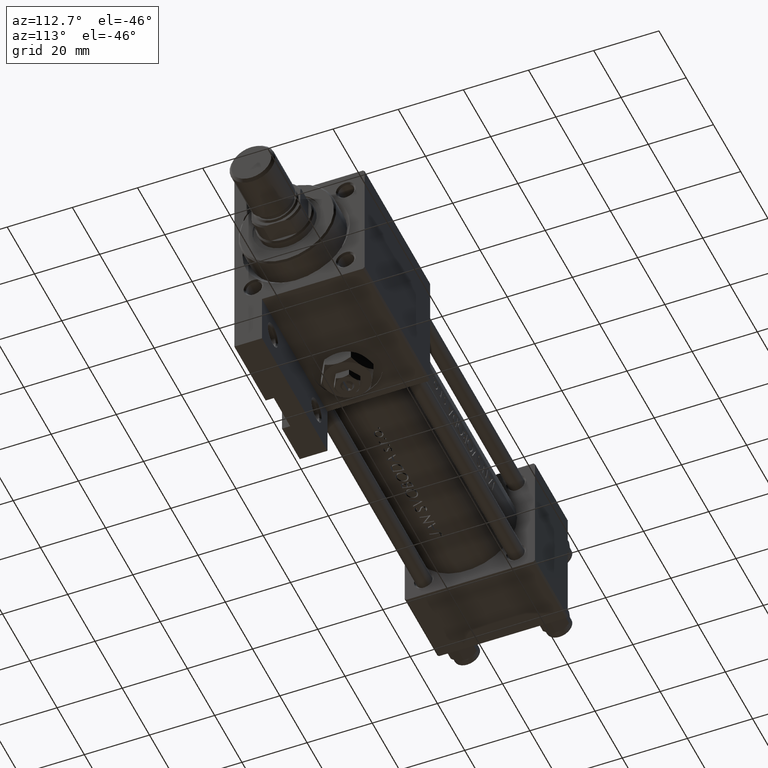
[diagram: clean part render]
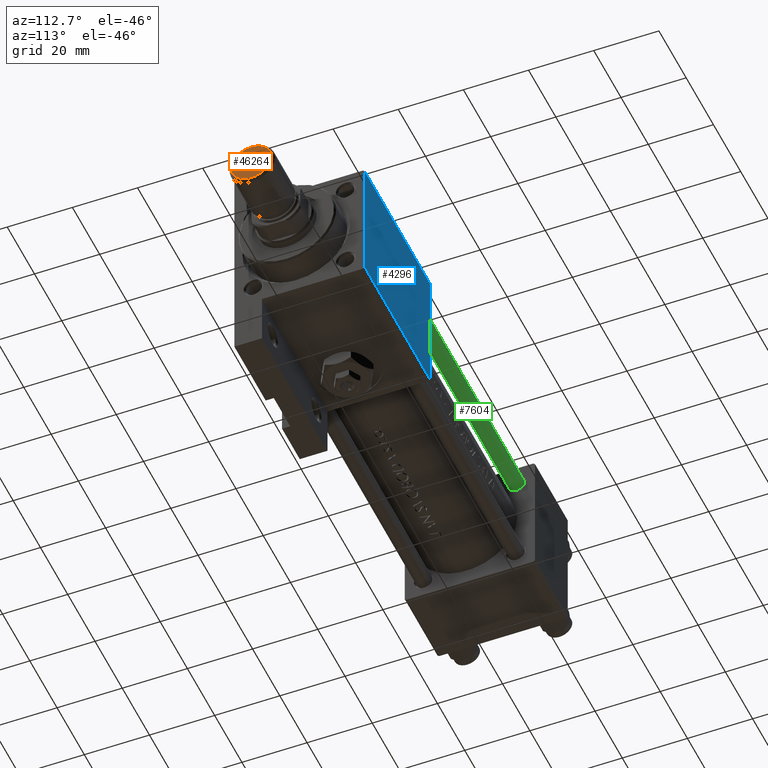
[diagram: same view with three faces highlighted in distinct colors, each labeled with its STEP entity id]
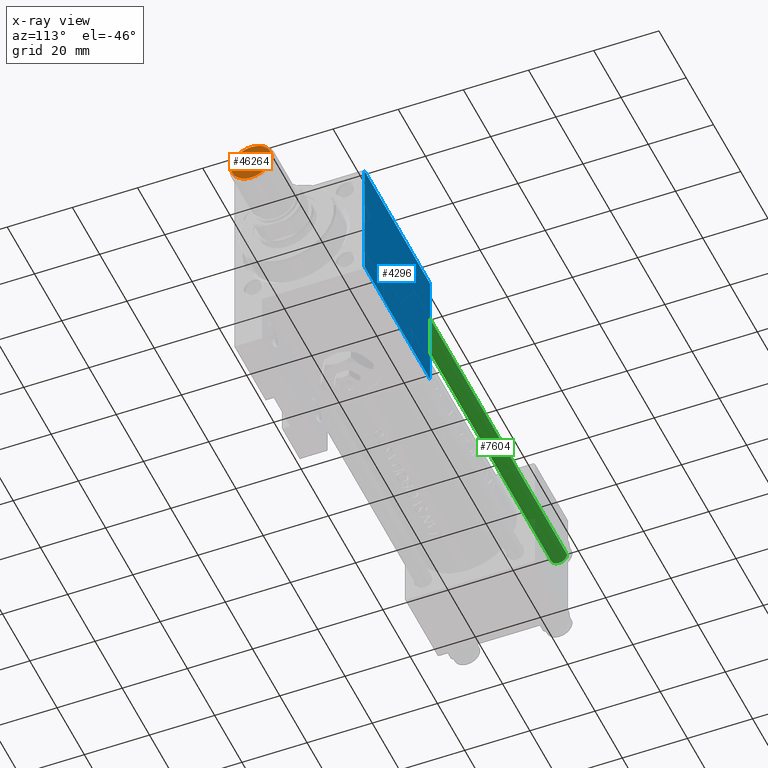
[diagram: x-ray of the same camera — body ghosted, the three highlighted faces saturated]
A machine part, auxiliary view with three faces highlighted in distinct colors.
The next image is the same camera in x-ray (body ghosted, the three faces saturated) — at least one of them is partly hidden behind the body in this view.
Their STEP definitions:

[orange] entity #46264 — the highlighted planar face has unit normal (-1, 0, 0).
#1138 = EDGE_CURVE ( 'NONE', #47028, #2381, #37991, .T. ) ;
#1239 = DIRECTION ( 'NONE',  ( 1.000000000000000000, 0.000000000000000000, 0.000000000000000000 ) ) ;
#2381 = VERTEX_POINT ( 'NONE', #41434 ) ;
#5195 = ORIENTED_EDGE ( 'NONE', *, *, #1138, .T. ) ;
#6479 = CARTESIAN_POINT ( 'NONE',  ( 6.199999999999995737, 0.000000000000000000, 0.000000000000000000 ) ) ;
#8300 = ORIENTED_EDGE ( 'NONE', *, *, #45438, .T. ) ;
#8532 = DIRECTION ( 'NONE',  ( -0.000000000000000000, -0.000000000000000000, -1.000000000000000000 ) ) ;
#15193 = AXIS2_PLACEMENT_3D ( 'NONE', #35729, #8532, #1239 ) ;
#19961 = PLANE ( 'NONE',  #49752 ) ;
#24908 = DIRECTION ( 'NONE',  ( -0.000000000000000000, -0.000000000000000000, -1.000000000000000000 ) ) ;
#28033 = DIRECTION ( 'NONE',  ( 1.000000000000000000, 0.000000000000000000, -0.000000000000000000 ) ) ;
#35567 = AXIS2_PLACEMENT_3D ( 'NONE', #48518, #24908, #40002 ) ;
#35729 = CARTESIAN_POINT ( 'NONE',  ( 0.000000000000000000, 0.000000000000000000, 0.000000000000000000 ) ) ;
#36088 = CIRCLE ( 'NONE', #15193, 6.199999999999995737 ) ;
#37991 = CIRCLE ( 'NONE', #35567, 6.199999999999995737 ) ;
#39097 = FACE_OUTER_BOUND ( 'NONE', #43991, .T. ) ;
#40002 = DIRECTION ( 'NONE',  ( 1.000000000000000000, 0.000000000000000000, 0.000000000000000000 ) ) ;
#41434 = CARTESIAN_POINT ( 'NONE',  ( -6.199999999999995737, 8.082668874372528061E-16, 0.000000000000000000 ) ) ;
#43991 = EDGE_LOOP ( 'NONE', ( #5195, #8300 ) ) ;
#45438 = EDGE_CURVE ( 'NONE', #2381, #47028, #36088, .T. ) ;
#46264 = ADVANCED_FACE ( 'NONE', ( #39097 ), #19961, .F. ) ;
#47028 = VERTEX_POINT ( 'NONE', #6479 ) ;
#47124 = CARTESIAN_POINT ( 'NONE',  ( 0.000000000000000000, 0.000000000000000000, 0.000000000000000000 ) ) ;
#47376 = DIRECTION ( 'NONE',  ( 0.000000000000000000, 0.000000000000000000, 1.000000000000000000 ) ) ;
#48518 = CARTESIAN_POINT ( 'NONE',  ( 0.000000000000000000, 0.000000000000000000, 0.000000000000000000 ) ) ;
#49752 = AXIS2_PLACEMENT_3D ( 'NONE', #47124, #47376, #28033 ) ;

[blue] entity #4296 — the highlighted planar face has unit normal (0, -1, -0).
#119 = EDGE_CURVE ( 'NONE', #6375, #11216, #35061, .T. ) ;
#4296 = ADVANCED_FACE ( 'NONE', ( #42375 ), #37874, .F. ) ;
#6375 = VERTEX_POINT ( 'NONE', #48938 ) ;
#7645 = DIRECTION ( 'NONE',  ( 0.000000000000000000, 8.673617379884034239E-17, -1.000000000000000000 ) ) ;
#9750 = VERTEX_POINT ( 'NONE', #30781 ) ;
#10923 = DIRECTION ( 'NONE',  ( 0.000000000000000000, 1.000000000000000000, 8.673617379884034239E-17 ) ) ;
#11216 = VERTEX_POINT ( 'NONE', #39009 ) ;
#13224 = EDGE_LOOP ( 'NONE', ( #38378, #14979, #16556, #45369 ) ) ;
#13778 = LINE ( 'NONE', #34178, #30025 ) ;
#14765 = DIRECTION ( 'NONE',  ( 0.000000000000000000, -1.000000000000000000, -8.673617379884035472E-17 ) ) ;
#14979 = ORIENTED_EDGE ( 'NONE', *, *, #17170, .T. ) ;
#15422 = CARTESIAN_POINT ( 'NONE',  ( 149.0000000000000284, 19.50000000000001066, 20.00000000000000000 ) ) ;
#16556 = ORIENTED_EDGE ( 'NONE', *, *, #119, .T. ) ;
#17170 = EDGE_CURVE ( 'NONE', #26132, #6375, #48956, .T. ) ;
#17945 = CARTESIAN_POINT ( 'NONE',  ( 149.0000000000000284, -19.50000000000000355, 19.99999999999999645 ) ) ;
#20027 = EDGE_CURVE ( 'NONE', #26132, #9750, #13778, .T. ) ;
#21742 = LINE ( 'NONE', #17945, #31283 ) ;
#26132 = VERTEX_POINT ( 'NONE', #15422 ) ;
#28332 = VECTOR ( 'NONE', #47112, 1000.000000000000000 ) ;
#30025 = VECTOR ( 'NONE', #14765, 1000.000000000000000 ) ;
#30781 = CARTESIAN_POINT ( 'NONE',  ( 149.0000000000000284, -19.50000000000000355, 19.99999999999999645 ) ) ;
#31283 = VECTOR ( 'NONE', #33321, 1000.000000000000000 ) ;
#31653 = VECTOR ( 'NONE', #41930, 1000.000000000000000 ) ;
#31789 = CARTESIAN_POINT ( 'NONE',  ( 101.0000000000000000, 19.99999999999999645, 20.00000000000000000 ) ) ;
#33321 = DIRECTION ( 'NONE',  ( 1.000000000000000000, 0.000000000000000000, 0.000000000000000000 ) ) ;
#33891 = CARTESIAN_POINT ( 'NONE',  ( 101.0000000000000000, 19.50000000000001066, 20.00000000000000000 ) ) ;
#34178 = CARTESIAN_POINT ( 'NONE',  ( 149.0000000000000284, 19.99999999999999645, 20.00000000000000000 ) ) ;
#35061 = LINE ( 'NONE', #31789, #28332 ) ;
#37874 = PLANE ( 'NONE',  #40556 ) ;
#38378 = ORIENTED_EDGE ( 'NONE', *, *, #20027, .F. ) ;
#39009 = CARTESIAN_POINT ( 'NONE',  ( 101.0000000000000000, -19.50000000000000355, 19.99999999999999645 ) ) ;
#40556 = AXIS2_PLACEMENT_3D ( 'NONE', #46160, #7645, #10923 ) ;
#41930 = DIRECTION ( 'NONE',  ( -1.000000000000000000, 0.000000000000000000, 0.000000000000000000 ) ) ;
#42375 = FACE_OUTER_BOUND ( 'NONE', #13224, .T. ) ;
#45369 = ORIENTED_EDGE ( 'NONE', *, *, #49100, .T. ) ;
#46160 = CARTESIAN_POINT ( 'NONE',  ( 149.0000000000000284, 19.99999999999999645, 20.00000000000000000 ) ) ;
#47112 = DIRECTION ( 'NONE',  ( 0.000000000000000000, -1.000000000000000000, -8.673617379884035472E-17 ) ) ;
#48938 = CARTESIAN_POINT ( 'NONE',  ( 101.0000000000000000, 19.50000000000001066, 20.00000000000000000 ) ) ;
#48956 = LINE ( 'NONE', #33891, #31653 ) ;
#49100 = EDGE_CURVE ( 'NONE', #11216, #9750, #21742, .T. ) ;

[green] entity #7604 — the highlighted cylindrical surface (edge-blend (fillet) strip) has radius 2.5 mm, axis along (1, -0, 0).
#405 = EDGE_CURVE ( 'NONE', #7178, #16368, #48044, .T. ) ;
#1448 = EDGE_CURVE ( 'NONE', #7178, #4929, #35014, .T. ) ;
#4929 = VERTEX_POINT ( 'NONE', #10805 ) ;
#7178 = VERTEX_POINT ( 'NONE', #48065 ) ;
#7232 = DIRECTION ( 'NONE',  ( -0.000000000000000000, -0.000000000000000000, 1.000000000000000000 ) ) ;
#7604 = ADVANCED_FACE ( 'NONE', ( #14764 ), #29902, .T. ) ;
#8282 = ORIENTED_EDGE ( 'NONE', *, *, #40532, .T. ) ;
#9081 = ORIENTED_EDGE ( 'NONE', *, *, #1448, .T. ) ;
#10290 = VECTOR ( 'NONE', #48315, 1000.000000000000000 ) ;
#10805 = CARTESIAN_POINT ( 'NONE',  ( 2.500000000000000000, 3.061616997868383141E-16, 123.5000000000000000 ) ) ;
#10864 = AXIS2_PLACEMENT_3D ( 'NONE', #45987, #11498, #41964 ) ;
#11498 = DIRECTION ( 'NONE',  ( -0.000000000000000000, -0.000000000000000000, -1.000000000000000000 ) ) ;
#13298 = AXIS2_PLACEMENT_3D ( 'NONE', #38161, #33895, #41427 ) ;
#14764 = FACE_OUTER_BOUND ( 'NONE', #26598, .T. ) ;
#16222 = VECTOR ( 'NONE', #25157, 1000.000000000000000 ) ;
#16368 = VERTEX_POINT ( 'NONE', #41227 ) ;
#18366 = LINE ( 'NONE', #32996, #10290 ) ;
#18552 = CARTESIAN_POINT ( 'NONE',  ( 0.000000000000000000, 0.000000000000000000, 0.5000000000000004441 ) ) ;
#25157 = DIRECTION ( 'NONE',  ( -0.000000000000000000, -0.000000000000000000, -1.000000000000000000 ) ) ;
#26598 = EDGE_LOOP ( 'NONE', ( #9081, #41301, #8282, #37641 ) ) ;
#29462 = CARTESIAN_POINT ( 'NONE',  ( 2.500000000000000000, 3.061616997868383141E-16, 0.5000000000000004441 ) ) ;
#29898 = DIRECTION ( 'NONE',  ( 1.000000000000000000, 0.000000000000000000, 0.000000000000000000 ) ) ;
#29902 = CYLINDRICAL_SURFACE ( 'NONE', #10864, 2.500000000000000000 ) ;
#32996 = CARTESIAN_POINT ( 'NONE',  ( 2.500000000000000000, 3.061616997868383141E-16, 124.0000000000000000 ) ) ;
#33895 = DIRECTION ( 'NONE',  ( 0.000000000000000000, 0.000000000000000000, -1.000000000000000000 ) ) ;
#35014 = CIRCLE ( 'NONE', #13298, 2.500000000000000000 ) ;
#35272 = VERTEX_POINT ( 'NONE', #29462 ) ;
#35317 = EDGE_CURVE ( 'NONE', #4929, #35272, #18366, .T. ) ;
#37003 = AXIS2_PLACEMENT_3D ( 'NONE', #18552, #7232, #29898 ) ;
#37641 = ORIENTED_EDGE ( 'NONE', *, *, #405, .F. ) ;
#38161 = CARTESIAN_POINT ( 'NONE',  ( 0.000000000000000000, 0.000000000000000000, 123.5000000000000000 ) ) ;
#40532 = EDGE_CURVE ( 'NONE', #35272, #16368, #49059, .T. ) ;
#41227 = CARTESIAN_POINT ( 'NONE',  ( -2.500000000000000000, 0.000000000000000000, 0.5000000000000004441 ) ) ;
#41301 = ORIENTED_EDGE ( 'NONE', *, *, #35317, .T. ) ;
#41427 = DIRECTION ( 'NONE',  ( 1.000000000000000000, 0.000000000000000000, 0.000000000000000000 ) ) ;
#41964 = DIRECTION ( 'NONE',  ( -1.000000000000000000, 0.000000000000000000, 0.000000000000000000 ) ) ;
#44282 = CARTESIAN_POINT ( 'NONE',  ( -2.500000000000000000, 0.000000000000000000, 124.0000000000000000 ) ) ;
#45987 = CARTESIAN_POINT ( 'NONE',  ( 0.000000000000000000, 0.000000000000000000, 124.0000000000000000 ) ) ;
#48044 = LINE ( 'NONE', #44282, #16222 ) ;
#48065 = CARTESIAN_POINT ( 'NONE',  ( -2.500000000000000000, 0.000000000000000000, 123.5000000000000000 ) ) ;
#48315 = DIRECTION ( 'NONE',  ( -0.000000000000000000, -0.000000000000000000, -1.000000000000000000 ) ) ;
#49059 = CIRCLE ( 'NONE', #37003, 2.500000000000000000 ) ;